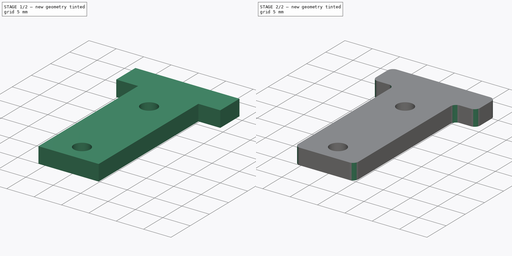
[diagram: build sequence overview — one tinted view per stage of 2, left to right]
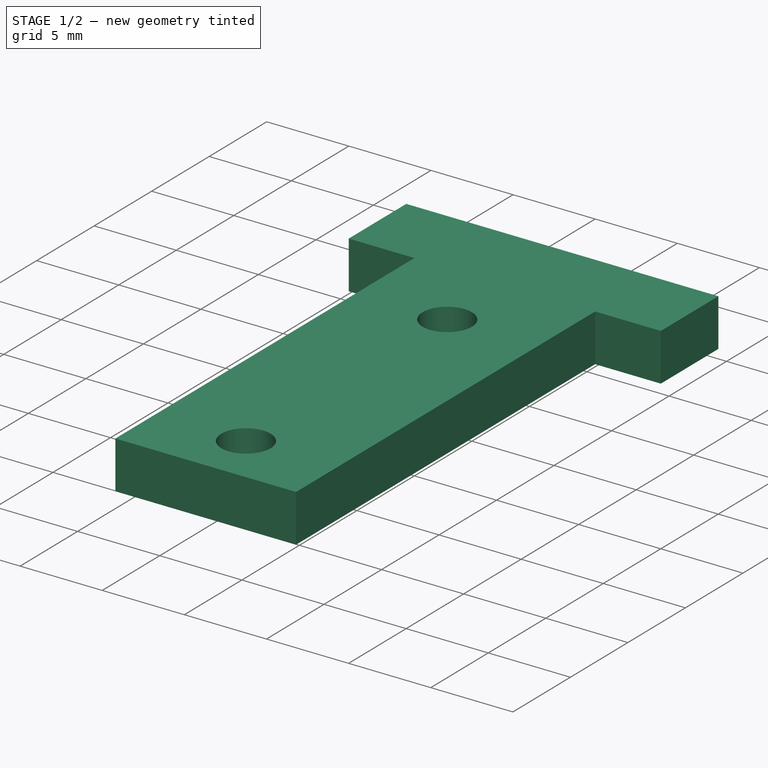
[diagram: stage 1 of 2 — iso view after this stage's code; geometry added in this stage tinted green]
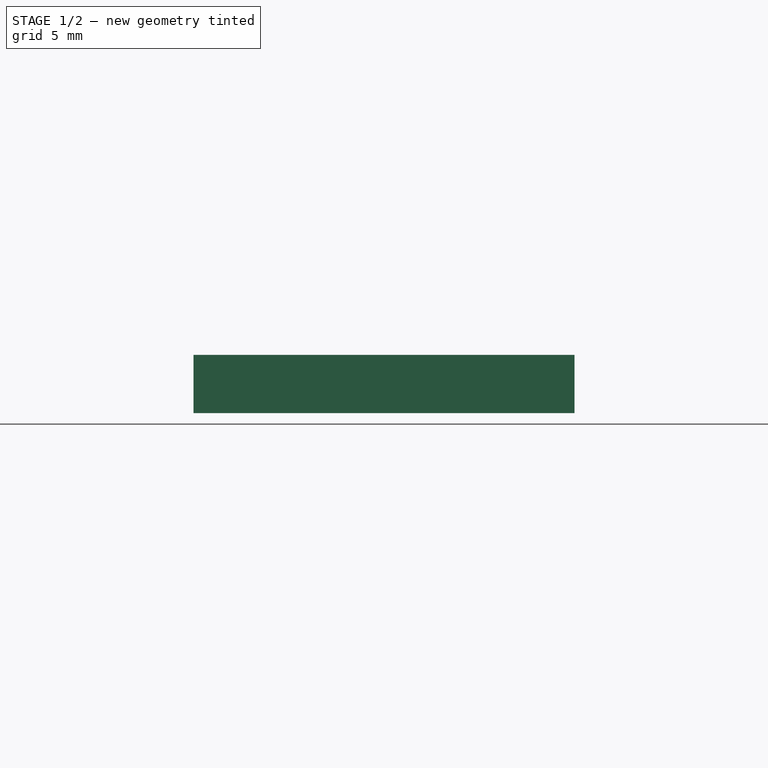
[diagram: stage 1 of 2 — front view after this stage's code; geometry added in this stage tinted green]
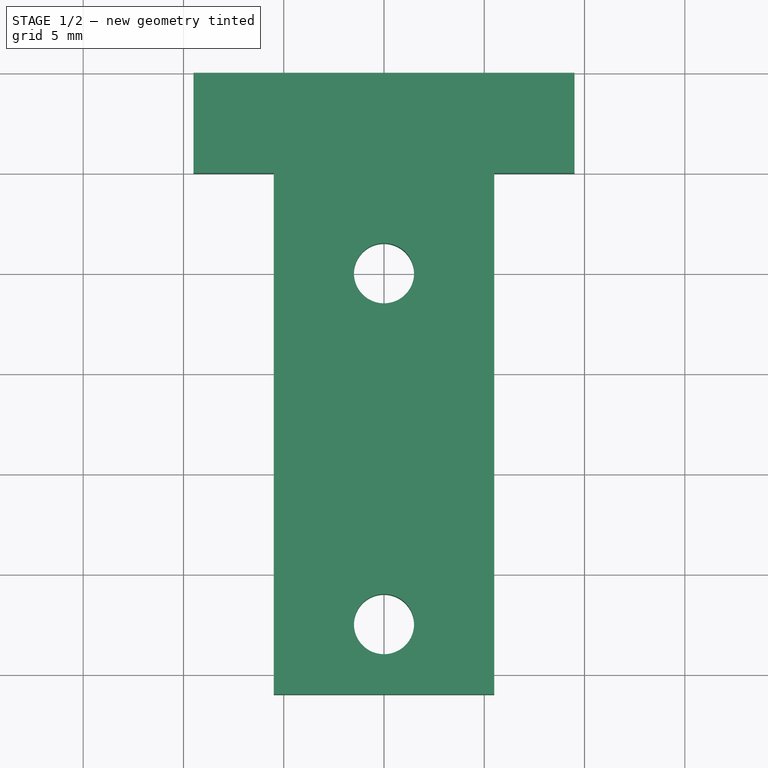
[diagram: stage 1 of 2 — top view after this stage's code; geometry added in this stage tinted green]
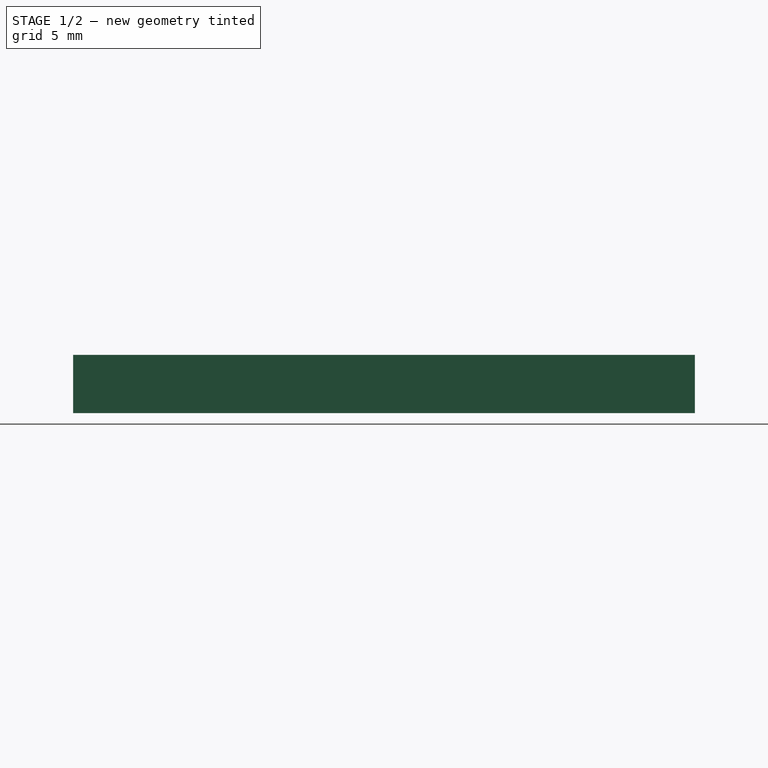
[diagram: stage 1 of 2 — right view after this stage's code; geometry added in this stage tinted green]
FCSTD DOCUMENT  (FreeCAD 0.16R6712 (Git))
Label: fixationEngine
License: All rights reserved
LicenseURL: http://en.wikipedia.org/wiki/All_rights_reserved
objects: Sketcher::SketchObject×2, PartDesign::Pad×1, PartDesign::Pocket×1, PartDesign::Fillet×1
note: 7 computed .brp shape members not serialized (recipe doc carries the construction recipe); baked Part::Feature solids carry a one-line shape summary decoded from their .brp

FEATURE [Sketcher::SketchObject] Sketch
  sketch-geometry (8):
    g0: LineSegment StartX=-9.5 StartY=5 StartZ=0 EndX=9.5 EndY=5 EndZ=0
    g1: LineSegment StartX=9.5 StartY=5 StartZ=0 EndX=9.5 EndY=0 EndZ=0
    g2: LineSegment StartX=9.5 StartY=0 StartZ=0 EndX=5.5 EndY=0 EndZ=0
    g3: LineSegment StartX=5.5 StartY=0 StartZ=0 EndX=5.5 EndY=-26 EndZ=0
    g4: LineSegment StartX=5.5 StartY=-26 StartZ=0 EndX=-5.5 EndY=-26 EndZ=0
    g5: LineSegment StartX=-5.5 StartY=-26 StartZ=0 EndX=-5.5 EndY=0 EndZ=0
    g6: LineSegment StartX=-5.5 StartY=0 StartZ=0 EndX=-9.5 EndY=0 EndZ=0
    g7: LineSegment StartX=-9.5 StartY=0 StartZ=0 EndX=-9.5 EndY=5 EndZ=0
  constraints (24):
    c: Horizontal(g0)
    c: Coincident(g0,g1)
    c: PointOnObject(g1,g-1)
    c: Vertical(g1)
    c: Coincident(g1,g2)
    c: Horizontal(g2)
    c: Coincident(g2,g3)
    c: Vertical(g3)
    c: Coincident(g3,g4)
    c: Horizontal(g4)
    c: Coincident(g4,g5)
    c: PointOnObject(g5,g-1)
    c: Vertical(g5)
    c: Coincident(g5,g6)
    c: PointOnObject(g6,g-1)
    c: Coincident(g6,g7)
    c: Coincident(g7,g0)
    c: Vertical(g7)
    c: Equal(g6,g2)
    c: DistanceY(g3,g3) = 26
    c: DistanceX(g4,g4) = 11
    c: DistanceY(g7,g7) = 5
    c: DistanceX(g0,g0) = 19
    c: Symmetric(g2,g5,g-1)
FEATURE [PartDesign::Pad] Pad
  Length = 2.9
  Length2 = 100
  Sketch = -> Sketch
  Type = 0
FEATURE [Sketcher::SketchObject] Sketch001
  Placement = pos=(0,0,2.9) rot=(0,0,1;0rad)
  Support = -> Pad [Face10]
  sketch-geometry (2):
    g0: Circle CenterX=0 CenterY=-5 CenterZ=0 NormalX=0 NormalY=0 NormalZ=1 Radius=1.5
    g1: Circle CenterX=0 CenterY=-22.5 CenterZ=0 NormalX=0 NormalY=0 NormalZ=1 Radius=1.5
  constraints (6):
    c: PointOnObject(g0,g-2)
    c: PointOnObject(g1,g-2)
    c: Equal(g0,g1)
    c: Radius(g0) = 1.5
    c: DistanceY(g0,g-1) = 5
    c: DistanceY(g1,g0) = 17.5
FEATURE [PartDesign::Pocket] Pocket
  Length = 5
  Sketch = -> Sketch001
  Type = 1
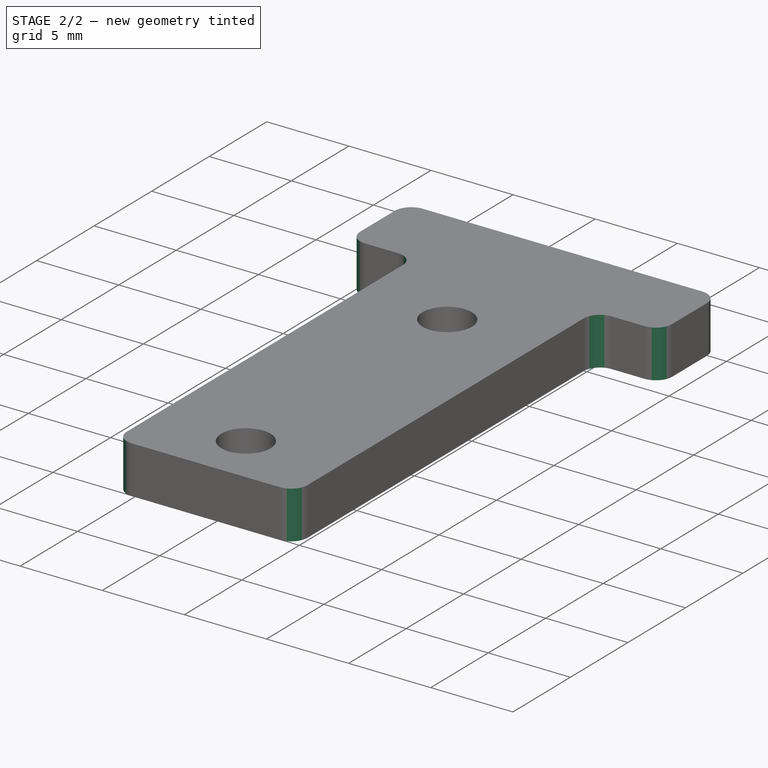
[diagram: stage 2 of 2 — iso view after this stage's code; geometry added in this stage tinted green]
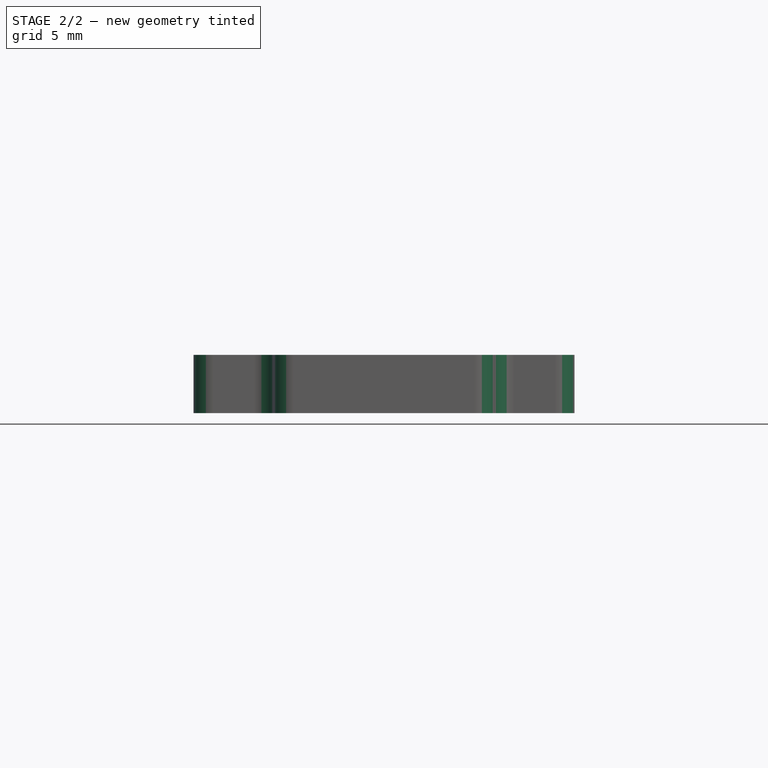
[diagram: stage 2 of 2 — front view after this stage's code; geometry added in this stage tinted green]
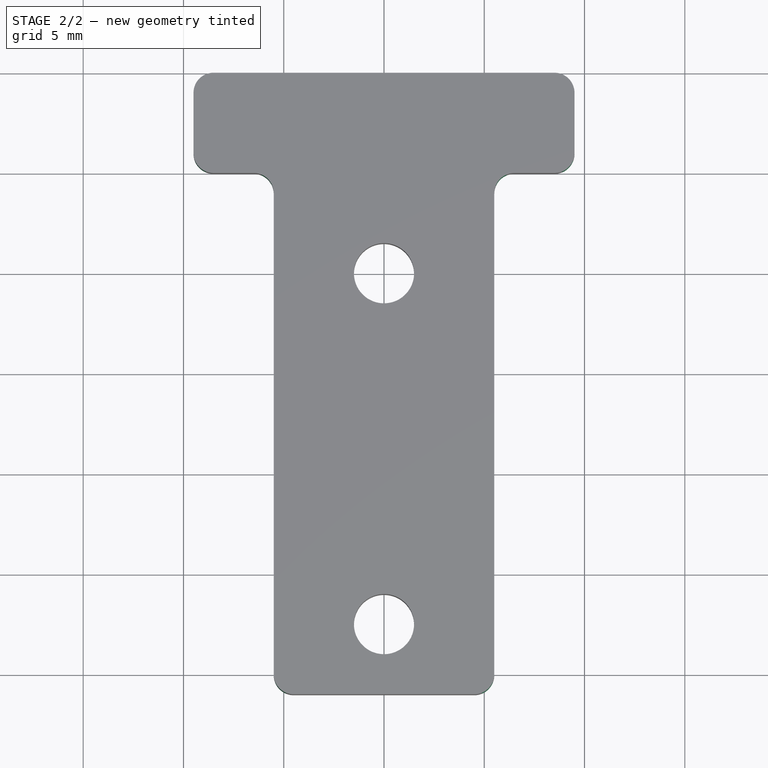
[diagram: stage 2 of 2 — top view after this stage's code; geometry added in this stage tinted green]
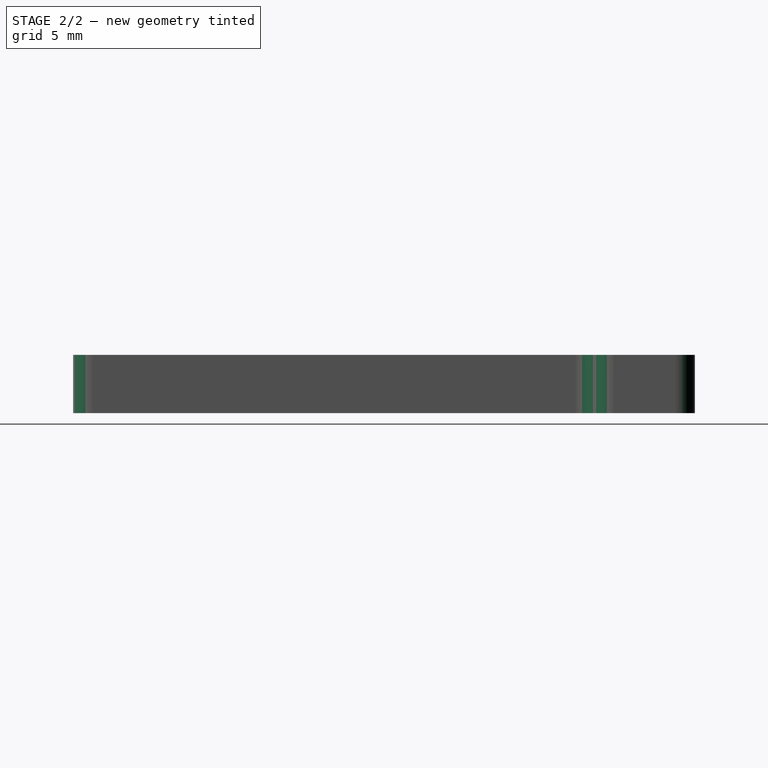
[diagram: stage 2 of 2 — right view after this stage's code; geometry added in this stage tinted green]
FEATURE [PartDesign::Fillet] Fillet
  Base = -> Pocket [Edge25,Edge5,Edge1,Edge27,Edge2,Edge8,Edge26,Edge28]
  Radius = 2
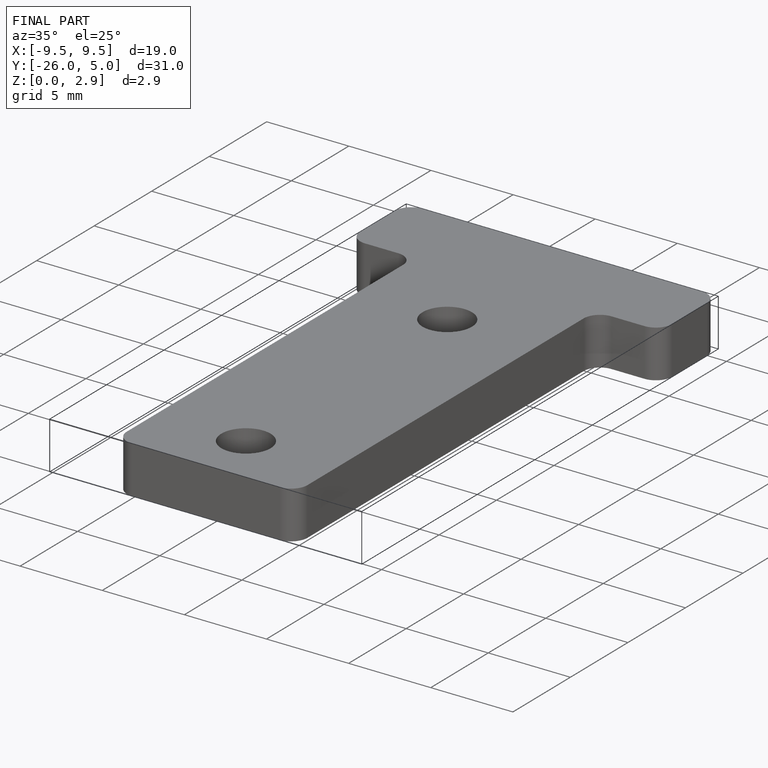
[diagram: finished part — iso view with bounding-box wireframe]
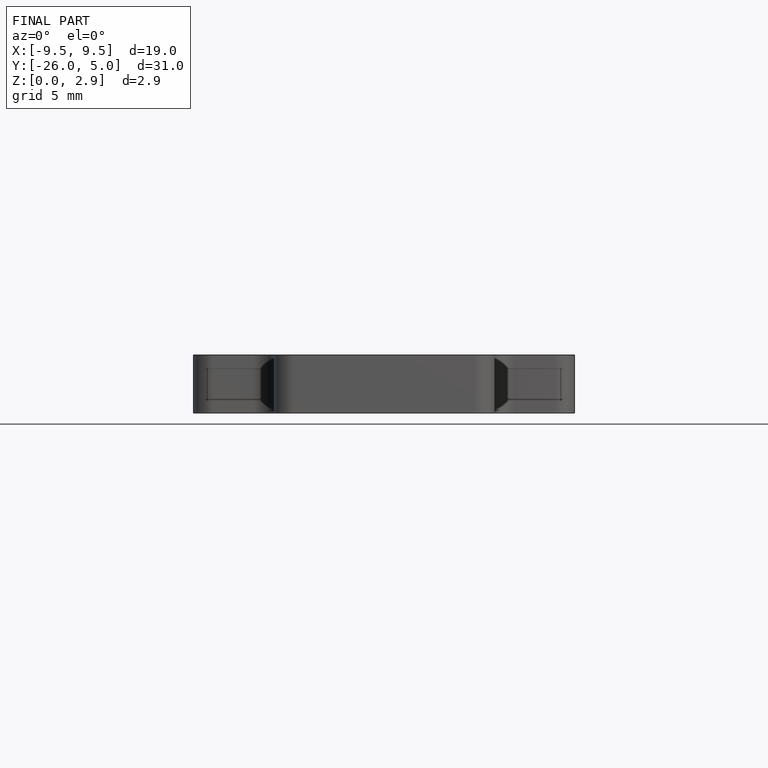
[diagram: finished part — front view with bounding-box wireframe]
